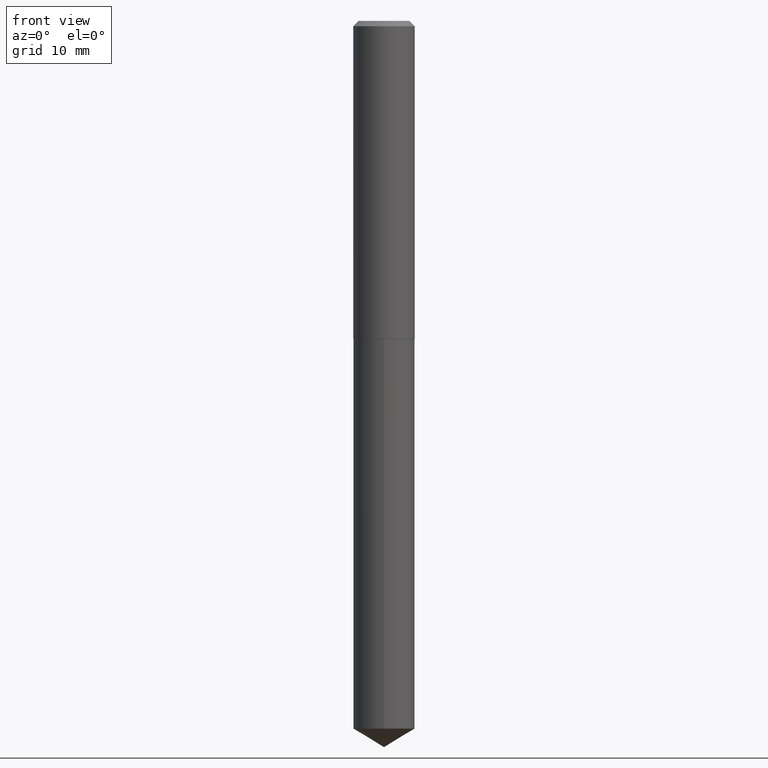
[diagram: clean part render]
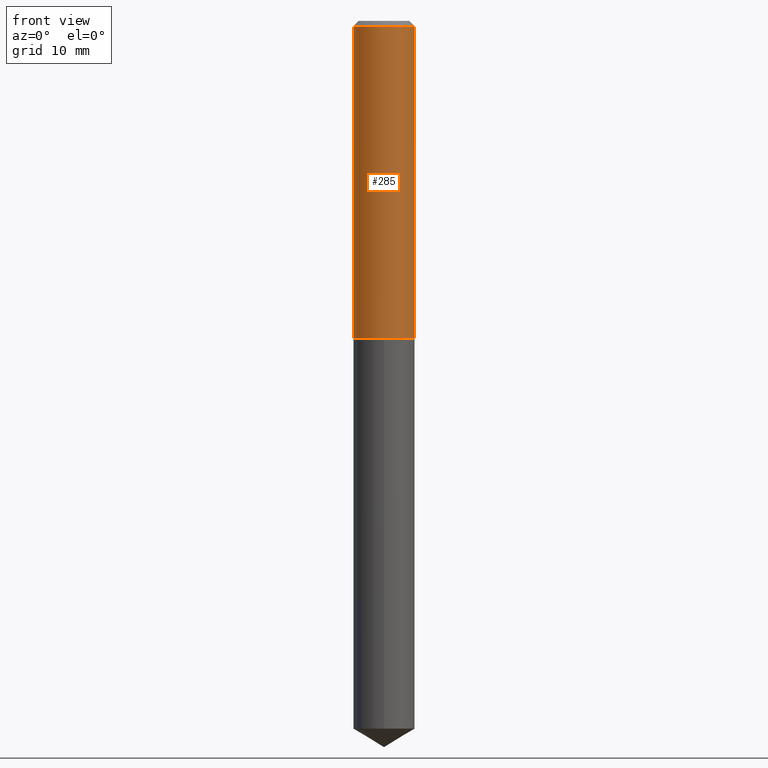
[diagram: same view with one face highlighted and labeled with its STEP entity id]
A machine part, front view. The second image highlights one B-rep face of the part: STEP entity #285.
In plain terms, the highlighted cylindrical surface (edge-blend (fillet) strip) has radius 4.5644 mm, axis along (-0, 0, 1).
Its self-contained STEP definition (entity closure, byte-faithful):
#5 = EDGE_CURVE ( 'NONE', #43, #371, #337, .T. ) ;
#18 = CIRCLE ( 'NONE', #50, 0.1797000000000001929 ) ;
#19 = ORIENTED_EDGE ( 'NONE', *, *, #45, .F. ) ;
#38 = CARTESIAN_POINT ( 'NONE',  ( 0.000000000000000000, 0.000000000000000000, 0.000000000000000000 ) ) ;
#43 = VERTEX_POINT ( 'NONE', #149 ) ;
#45 = EDGE_CURVE ( 'NONE', #129, #43, #115, .T. ) ;
#46 = CARTESIAN_POINT ( 'NONE',  ( 7.642090019328603538E-31, -1.091087918388490390E-16, -0.03125000000000021511 ) ) ;
#50 = AXIS2_PLACEMENT_3D ( 'NONE', #264, #237, #240 ) ;
#57 = DIRECTION ( 'NONE',  ( 1.000000000000000000, -6.982962677686265922E-15, 4.876176775795935232E-29 ) ) ;
#81 = DIRECTION ( 'NONE',  ( -2.445468806185136597E-29, 3.491481338843145583E-15, 1.000000000000000000 ) ) ;
#115 = LINE ( 'NONE', #388, #152 ) ;
#129 = VERTEX_POINT ( 'NONE', #319 ) ;
#149 = CARTESIAN_POINT ( 'NONE',  ( -0.1796999999999999986, -2.022866430146284319E-15, -0.03125000000000021511 ) ) ;
#152 = VECTOR ( 'NONE', #167, 39.37007874015748143 ) ;
#155 = DIRECTION ( 'NONE',  ( -2.445468806185136877E-29, 3.491481338843145188E-15, 1.000000000000000000 ) ) ;
#167 = DIRECTION ( 'NONE',  ( -2.445468806185136877E-29, 3.491481338843145188E-15, 1.000000000000000000 ) ) ;
#173 = ORIENTED_EDGE ( 'NONE', *, *, #5, .F. ) ;
#177 = VERTEX_POINT ( 'NONE', #390 ) ;
#223 = ORIENTED_EDGE ( 'NONE', *, *, #339, .T. ) ;
#237 = DIRECTION ( 'NONE',  ( -2.445468806185136597E-29, 3.491481338843145583E-15, 1.000000000000000000 ) ) ;
#240 = DIRECTION ( 'NONE',  ( 1.000000000000000000, -6.982962677686265922E-15, 0.000000000000000000 ) ) ;
#241 = AXIS2_PLACEMENT_3D ( 'NONE', #46, #81, #286 ) ;
#253 = VECTOR ( 'NONE', #155, 39.37007874015748143 ) ;
#264 = CARTESIAN_POINT ( 'NONE',  ( 4.545881963817549414E-29, -6.490314660775522348E-15, -1.858899999999999775 ) ) ;
#273 = DIRECTION ( 'NONE',  ( -2.445468806185136597E-29, 3.491481338843145583E-15, 1.000000000000000000 ) ) ;
#277 = EDGE_LOOP ( 'NONE', ( #19, #358, #223, #173 ) ) ;
#285 = ADVANCED_FACE ( 'NONE', ( #292 ), #344, .T. ) ;
#286 = DIRECTION ( 'NONE',  ( 1.000000000000000000, -6.982962677686265922E-15, 0.000000000000000000 ) ) ;
#292 = FACE_OUTER_BOUND ( 'NONE', #277, .T. ) ;
#297 = AXIS2_PLACEMENT_3D ( 'NONE', #38, #273, #57 ) ;
#312 = EDGE_CURVE ( 'NONE', #129, #177, #18, .T. ) ;
#319 = CARTESIAN_POINT ( 'NONE',  ( -0.1797000000000001929, -5.213469364614620154E-15, -1.858899999999999775 ) ) ;
#336 = CARTESIAN_POINT ( 'NONE',  ( 0.1796999999999999986, -1.363947185019071028E-15, -0.03125000000000021511 ) ) ;
#337 = CIRCLE ( 'NONE', #241, 0.1796999999999999986 ) ;
#339 = EDGE_CURVE ( 'NONE', #177, #371, #362, .T. ) ;
#344 = CYLINDRICAL_SURFACE ( 'NONE', #297, 0.1797000000000001096 ) ;
#358 = ORIENTED_EDGE ( 'NONE', *, *, #312, .T. ) ;
#362 = LINE ( 'NONE', #368, #253 ) ;
#368 = CARTESIAN_POINT ( 'NONE',  ( 0.1797000000000001096, -1.254838393180222716E-15, 8.762489666105301250E-30 ) ) ;
#371 = VERTEX_POINT ( 'NONE', #336 ) ;
#388 = CARTESIAN_POINT ( 'NONE',  ( -0.1797000000000001096, 1.276845296160900813E-15, -8.839326357188071190E-30 ) ) ;
#390 = CARTESIAN_POINT ( 'NONE',  ( 0.1797000000000001929, -7.745153053955744867E-15, -1.858899999999999775 ) ) ;